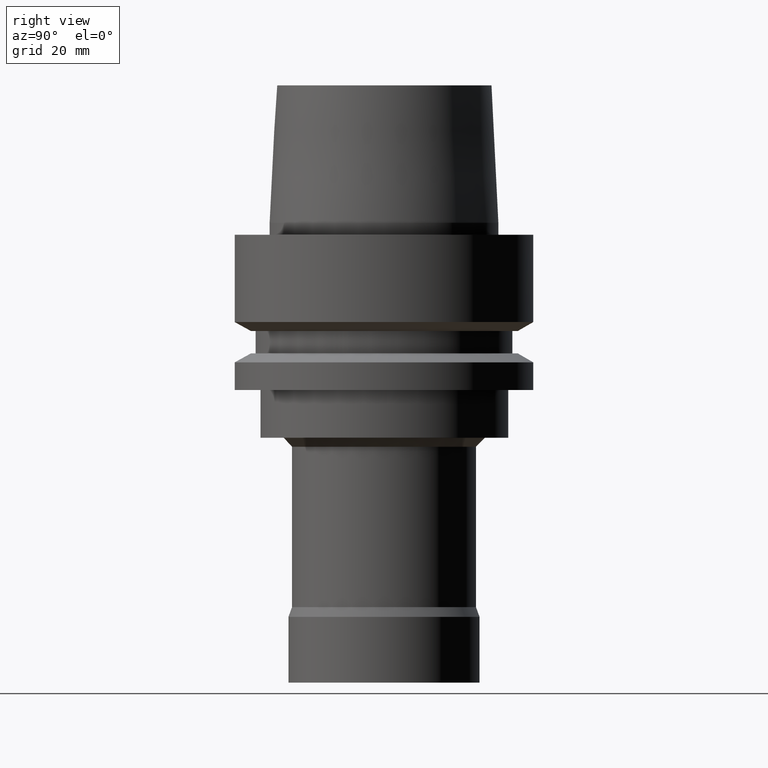
[diagram: clean part render]
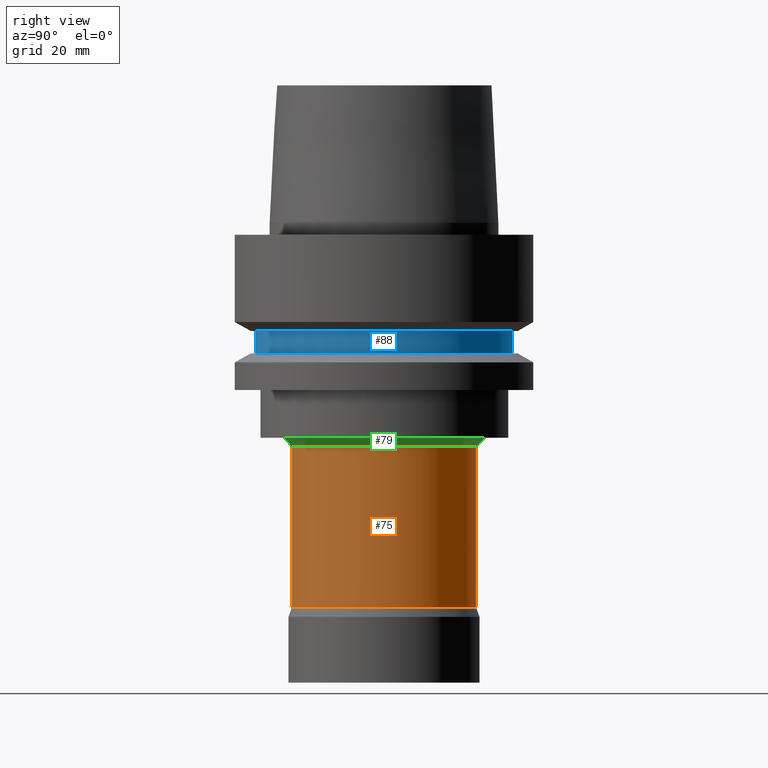
[diagram: same view with three faces highlighted in distinct colors, each labeled with its STEP entity id]
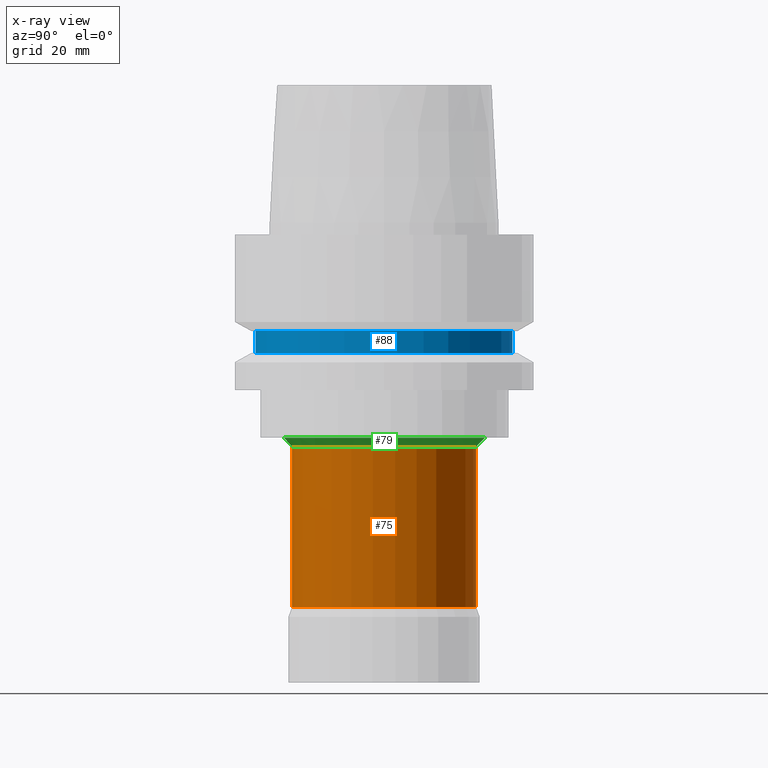
[diagram: x-ray of the same camera — body ghosted, the three highlighted faces saturated]
A machine part, right view with three faces highlighted in distinct colors.
The next image is the same camera in x-ray (body ghosted, the three faces saturated) — at least one of them is partly hidden behind the body in this view.
Their STEP definitions:

[orange] entity #75 — the highlighted cylindrical surface (bore or boss wall) has radius 15.4 mm, axis along (-0, -0, 1).
#75=ADVANCED_FACE('',(#95,#96),#97,.T.);
#95=FACE_BOUND('',#150,.T.);
#96=FACE_BOUND('',#151,.T.);
#97=CYLINDRICAL_SURFACE('',#152,15.4);
#150=EDGE_LOOP('',(#205));
#151=EDGE_LOOP('',(#206));
#152=AXIS2_PLACEMENT_3D('',#207,#208,#209);
#205=ORIENTED_EDGE('',*,*,#298,.F.);
#206=ORIENTED_EDGE('',*,*,#299,.T.);
#207=CARTESIAN_POINT('',(2.99590213895353E-015,5.99180427790705E-015,-48.92679491));
#208=DIRECTION('',(-6.12323399573677E-017,-1.22464679914735E-016,1.0));
#209=DIRECTION('',(-1.23259516440783E-032,1.0,1.22464679914735E-016));
#298=EDGE_CURVE('',#316,#316,#317,.T.);
#299=EDGE_CURVE('',#318,#318,#319,.T.);
#316=VERTEX_POINT('',#352);
#317=CIRCLE('',#353,15.4);
#318=VERTEX_POINT('',#354);
#319=CIRCLE('',#355,15.4);
#352=CARTESIAN_POINT('',(3.8180562094205E-015,15.4,-62.35358982));
#353=AXIS2_PLACEMENT_3D('',#388,#389,#390);
#354=CARTESIAN_POINT('',(2.17374806848655E-015,15.4,-35.5));
#355=AXIS2_PLACEMENT_3D('',#391,#392,#393);
#388=CARTESIAN_POINT('',(3.8180562094205E-015,7.636112418841E-015,-62.35358982));
#389=DIRECTION('',(6.12323399573677E-017,1.22464679914735E-016,-1.0));
#390=DIRECTION('',(-1.23259516440783E-032,1.0,1.22464679914735E-016));
#391=CARTESIAN_POINT('',(2.17374806848655E-015,4.3474961369731E-015,-35.5));
#392=DIRECTION('',(6.12323399573677E-017,1.22464679914735E-016,-1.0));
#393=DIRECTION('',(-1.23259516440783E-032,1.0,1.22464679914735E-016));

[blue] entity #88 — the highlighted cylindrical surface (bore or boss wall) has radius 21.5 mm, axis along (-0, -0, 1).
#88=ADVANCED_FACE('',(#132,#133),#134,.T.);
#132=FACE_BOUND('',#187,.T.);
#133=FACE_BOUND('',#188,.T.);
#134=CYLINDRICAL_SURFACE('',#189,21.5);
#187=EDGE_LOOP('',(#268));
#188=EDGE_LOOP('',(#269));
#189=AXIS2_PLACEMENT_3D('',#270,#271,#272);
#268=ORIENTED_EDGE('',*,*,#311,.F.);
#269=ORIENTED_EDGE('',*,*,#310,.T.);
#270=CARTESIAN_POINT('',(1.10218211923262E-015,2.20436423846524E-015,-18.0));
#271=DIRECTION('',(-6.12323399573677E-017,-1.22464679914735E-016,1.0));
#272=DIRECTION('',(-1.23259516440783E-032,1.0,1.22464679914735E-016));
#310=EDGE_CURVE('',#340,#340,#341,.T.);
#311=EDGE_CURVE('',#342,#342,#343,.T.);
#340=VERTEX_POINT('',#376);
#341=CIRCLE('',#377,21.5);
#342=VERTEX_POINT('',#378);
#343=CIRCLE('',#379,21.5);
#376=CARTESIAN_POINT('',(9.87371481812553E-016,21.5,-16.125));
#377=AXIS2_PLACEMENT_3D('',#424,#425,#426);
#378=CARTESIAN_POINT('',(1.21699275665268E-015,21.5,-19.875));
#379=AXIS2_PLACEMENT_3D('',#427,#428,#429);
#424=CARTESIAN_POINT('',(9.87371481812554E-016,1.97474296362511E-015,-16.125));
#425=DIRECTION('',(6.12323399573677E-017,1.22464679914735E-016,-1.0));
#426=DIRECTION('',(-1.23259516440783E-032,1.0,1.22464679914735E-016));
#427=CARTESIAN_POINT('',(1.21699275665268E-015,2.43398551330536E-015,-19.875));
#428=DIRECTION('',(6.12323399573677E-017,1.22464679914735E-016,-1.0));
#429=DIRECTION('',(-1.23259516440783E-032,1.0,1.22464679914735E-016));

[green] entity #79 — the highlighted conical surface has half-angle 45 deg.
#79=ADVANCED_FACE('',(#106,#107),#108,.T.);
#106=FACE_BOUND('',#161,.T.);
#107=FACE_BOUND('',#162,.T.);
#108=CONICAL_SURFACE('',#163,16.15,0.785398163397448);
#161=EDGE_LOOP('',(#224));
#162=EDGE_LOOP('',(#225));
#163=AXIS2_PLACEMENT_3D('',#226,#227,#228);
#224=ORIENTED_EDGE('',*,*,#299,.F.);
#225=ORIENTED_EDGE('',*,*,#302,.F.);
#226=CARTESIAN_POINT('',(2.12782381351853E-015,4.25564762703705E-015,-34.75));
#227=DIRECTION('',(-6.12323399573677E-017,-1.22464679914735E-016,1.0));
#228=DIRECTION('',(-1.23259516440783E-032,1.0,1.22464679914735E-016));
#299=EDGE_CURVE('',#318,#318,#319,.T.);
#302=EDGE_CURVE('',#324,#324,#325,.T.);
#318=VERTEX_POINT('',#354);
#319=CIRCLE('',#355,15.4);
#324=VERTEX_POINT('',#360);
#325=CIRCLE('',#361,16.9);
#354=CARTESIAN_POINT('',(2.17374806848655E-015,15.4,-35.5));
#355=AXIS2_PLACEMENT_3D('',#391,#392,#393);
#360=CARTESIAN_POINT('',(2.0818995585505E-015,16.9,-34.0));
#361=AXIS2_PLACEMENT_3D('',#400,#401,#402);
#391=CARTESIAN_POINT('',(2.17374806848655E-015,4.3474961369731E-015,-35.5));
#392=DIRECTION('',(6.12323399573677E-017,1.22464679914735E-016,-1.0));
#393=DIRECTION('',(-1.23259516440783E-032,1.0,1.22464679914735E-016));
#400=CARTESIAN_POINT('',(2.0818995585505E-015,4.163799117101E-015,-34.0));
#401=DIRECTION('',(-6.12323399573677E-017,-1.22464679914735E-016,1.0));
#402=DIRECTION('',(-1.23259516440783E-032,1.0,1.22464679914735E-016));